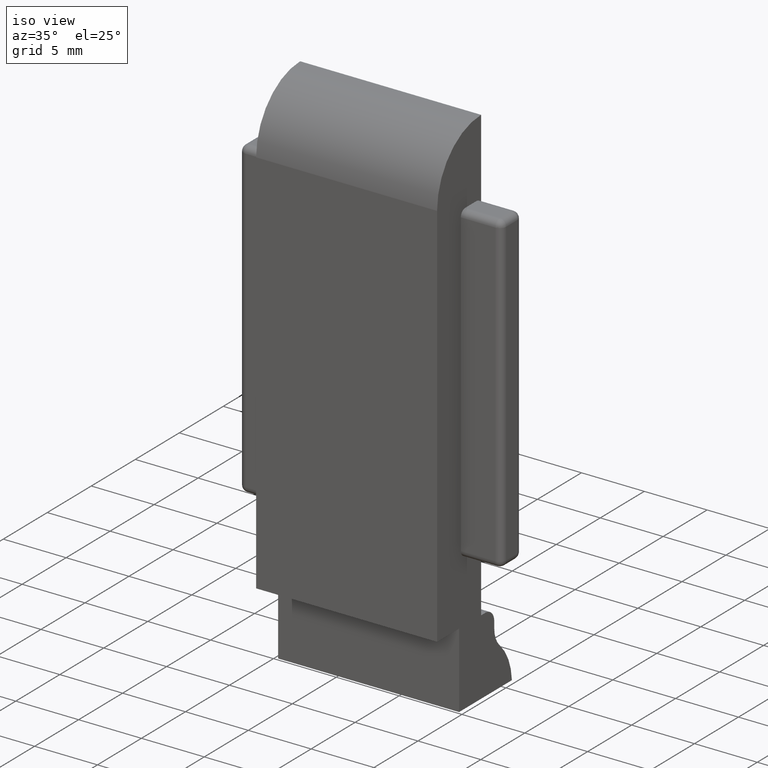
[diagram: clean part render]
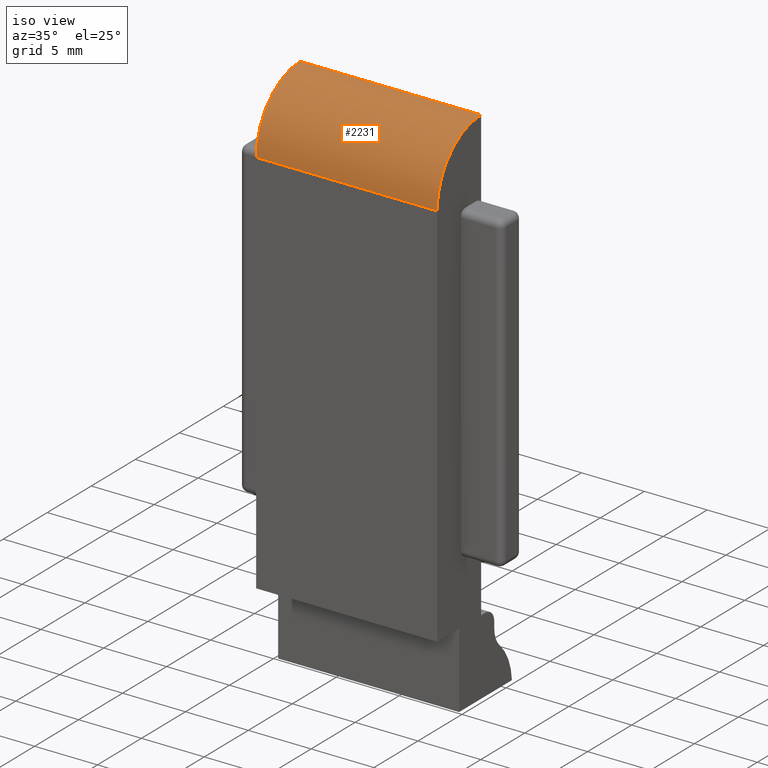
[diagram: same view with one face highlighted and labeled with its STEP entity id]
A machine part, iso view. The second image highlights one B-rep face of the part: STEP entity #2231.
In plain terms, the highlighted cylindrical surface (partial cylindrical patch) has radius 5 mm, axis along (-1, -0, -0).
Its self-contained STEP definition (entity closure, byte-faithful):
#17 = FACE_OUTER_BOUND ( 'NONE', #8376, .T. ) ;
#231 = EDGE_CURVE ( 'NONE', #9597, #2165, #3041, .T. ) ;
#396 = AXIS2_PLACEMENT_3D ( 'NONE', #9360, #2570, #5791 ) ;
#744 = CARTESIAN_POINT ( 'NONE',  ( 14.40000000000000000, 0.0000000000000000000, 30.99999999999999300 ) ) ;
#907 = AXIS2_PLACEMENT_3D ( 'NONE', #5302, #8624, #7884 ) ;
#922 = CARTESIAN_POINT ( 'NONE',  ( 14.40000000000000000, -4.336808689942017700E-015, 36.00000000000000000 ) ) ;
#978 = CARTESIAN_POINT ( 'NONE',  ( 14.40000000000000000, -4.336808689942017700E-015, 36.00000000000000000 ) ) ;
#1304 = CIRCLE ( 'NONE', #907, 5.000000000000004400 ) ;
#1489 = VECTOR ( 'NONE', #4710, 1000.000000000000000 ) ;
#1608 = DIRECTION ( 'NONE',  ( 1.000000000000000000, 0.0000000000000000000, 0.0000000000000000000 ) ) ;
#1664 = ORIENTED_EDGE ( 'NONE', *, *, #4617, .F. ) ;
#2165 = VERTEX_POINT ( 'NONE', #7008 ) ;
#2231 = ADVANCED_FACE ( 'NONE', ( #17 ), #4946, .T. ) ;
#2468 = ORIENTED_EDGE ( 'NONE', *, *, #9064, .T. ) ;
#2485 = VECTOR ( 'NONE', #4102, 1000.000000000000000 ) ;
#2570 = DIRECTION ( 'NONE',  ( -1.000000000000000000, -0.0000000000000000000, -0.0000000000000000000 ) ) ;
#3041 = CIRCLE ( 'NONE', #3475, 5.000000000000004400 ) ;
#3475 = AXIS2_PLACEMENT_3D ( 'NONE', #744, #1608, #4609 ) ;
#3938 = CARTESIAN_POINT ( 'NONE',  ( 0.0000000000000000000, -4.336808689942017700E-015, 36.00000000000000000 ) ) ;
#4102 = DIRECTION ( 'NONE',  ( -1.000000000000000000, -0.0000000000000000000, -0.0000000000000000000 ) ) ;
#4139 = CARTESIAN_POINT ( 'NONE',  ( 14.40000000000000000, -5.000000000000002700, 30.99999999999999300 ) ) ;
#4609 = DIRECTION ( 'NONE',  ( 0.0000000000000000000, 0.0000000000000000000, -1.000000000000000000 ) ) ;
#4617 = EDGE_CURVE ( 'NONE', #2165, #6245, #7278, .T. ) ;
#4710 = DIRECTION ( 'NONE',  ( -1.000000000000000000, -0.0000000000000000000, -0.0000000000000000000 ) ) ;
#4774 = EDGE_CURVE ( 'NONE', #7770, #6245, #1304, .T. ) ;
#4946 = CYLINDRICAL_SURFACE ( 'NONE', #396, 5.000000000000004400 ) ;
#5302 = CARTESIAN_POINT ( 'NONE',  ( 0.0000000000000000000, 0.0000000000000000000, 30.99999999999999300 ) ) ;
#5791 = DIRECTION ( 'NONE',  ( 0.0000000000000000000, 0.0000000000000000000, 1.000000000000000000 ) ) ;
#6245 = VERTEX_POINT ( 'NONE', #7771 ) ;
#7008 = CARTESIAN_POINT ( 'NONE',  ( 14.40000000000000000, -5.000000000000002700, 30.99999999999999300 ) ) ;
#7278 = LINE ( 'NONE', #4139, #2485 ) ;
#7333 = ORIENTED_EDGE ( 'NONE', *, *, #4774, .T. ) ;
#7770 = VERTEX_POINT ( 'NONE', #3938 ) ;
#7771 = CARTESIAN_POINT ( 'NONE',  ( 0.0000000000000000000, -5.000000000000002700, 30.99999999999999300 ) ) ;
#7884 = DIRECTION ( 'NONE',  ( 0.0000000000000000000, 0.0000000000000000000, -1.000000000000000000 ) ) ;
#8376 = EDGE_LOOP ( 'NONE', ( #7333, #1664, #9129, #2468 ) ) ;
#8624 = DIRECTION ( 'NONE',  ( 1.000000000000000000, 0.0000000000000000000, 0.0000000000000000000 ) ) ;
#9064 = EDGE_CURVE ( 'NONE', #9597, #7770, #9756, .T. ) ;
#9129 = ORIENTED_EDGE ( 'NONE', *, *, #231, .F. ) ;
#9360 = CARTESIAN_POINT ( 'NONE',  ( 14.40000000000000000, 0.0000000000000000000, 30.99999999999999300 ) ) ;
#9597 = VERTEX_POINT ( 'NONE', #922 ) ;
#9756 = LINE ( 'NONE', #978, #1489 ) ;